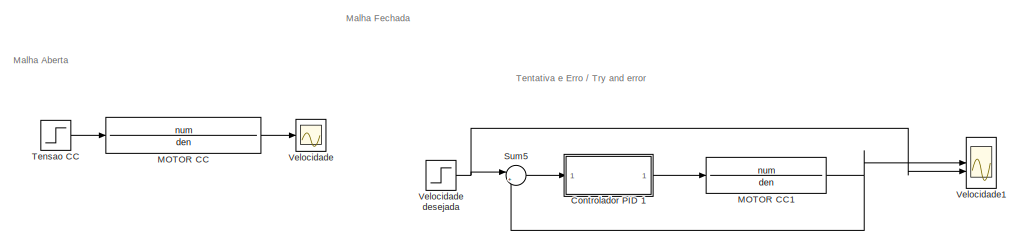
[diagram: root canvas - part 1/2, top left region]
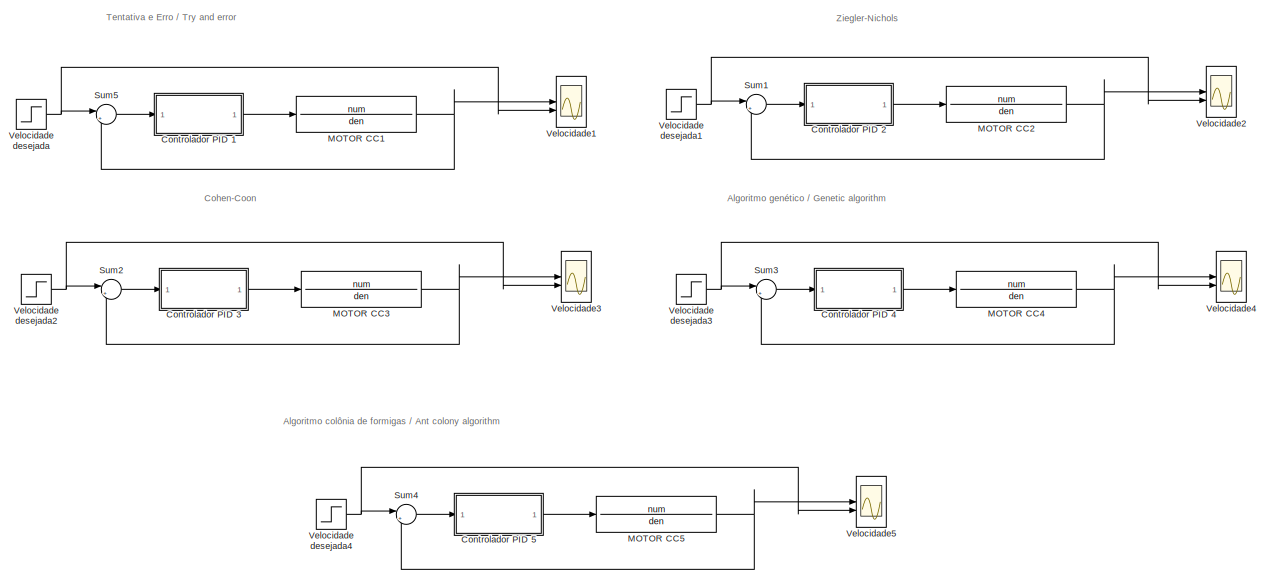
[diagram: root canvas - part 2/2, most of the canvas]
MODEL slx_eb0a801aba2a
KIND model
CONFIG AbsTol = auto
CONFIG EnableMultiTasking = off
CONFIG FixedStep = auto
CONFIG MaxStep = auto
CONFIG MinStep = auto
CONFIG RelTol = 1e-3
CONFIG SampleTimeConstraint = Unconstrained
CONFIG SolverName = VariableStepAuto
CONFIG StartTime = 0.0
CONFIG StopTime = 35
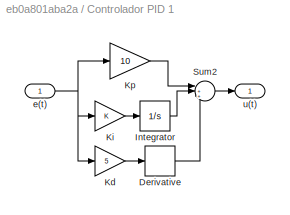
BLOCK [SubSystem] Controlador PID 1
BLOCK [Derivative] Controlador PID 1/Derivative
BLOCK [Integrator] Controlador PID 1/Integrator
BLOCK [Gain] Controlador PID 1/Kd
  Gain = 5
BLOCK [Gain] Controlador PID 1/Ki
BLOCK [Gain] Controlador PID 1/Kp
  Gain = 10
BLOCK [Sum] Controlador PID 1/Sum2
  Inputs = |+++
BLOCK [Inport] Controlador PID 1/e(t)
BLOCK [Outport] Controlador PID 1/u(t)
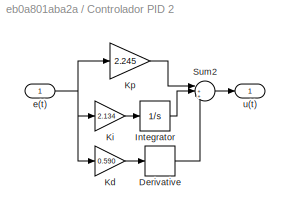
BLOCK [SubSystem] Controlador PID 2
BLOCK [Derivative] Controlador PID 2/Derivative
BLOCK [Integrator] Controlador PID 2/Integrator
BLOCK [Gain] Controlador PID 2/Kd
  Gain = 0.590
BLOCK [Gain] Controlador PID 2/Ki
  Gain = 2.134
BLOCK [Gain] Controlador PID 2/Kp
  Gain = 2.245
BLOCK [Sum] Controlador PID 2/Sum2
  Inputs = |+++
BLOCK [Inport] Controlador PID 2/e(t)
BLOCK [Outport] Controlador PID 2/u(t)
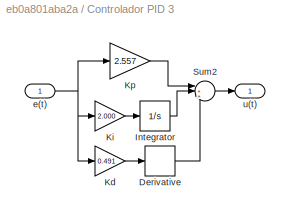
BLOCK [SubSystem] Controlador PID 3
BLOCK [Derivative] Controlador PID 3/Derivative
BLOCK [Integrator] Controlador PID 3/Integrator
BLOCK [Gain] Controlador PID 3/Kd
  Gain = 0.491
BLOCK [Gain] Controlador PID 3/Ki
  Gain = 2.000
BLOCK [Gain] Controlador PID 3/Kp
  Gain = 2.557
BLOCK [Sum] Controlador PID 3/Sum2
  Inputs = |+++
BLOCK [Inport] Controlador PID 3/e(t)
BLOCK [Outport] Controlador PID 3/u(t)
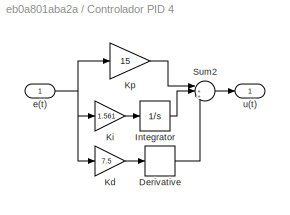
BLOCK [SubSystem] Controlador PID 4
BLOCK [Derivative] Controlador PID 4/Derivative
BLOCK [Integrator] Controlador PID 4/Integrator
BLOCK [Gain] Controlador PID 4/Kd
  Gain = 7.5
BLOCK [Gain] Controlador PID 4/Ki
  Gain = 1.561
BLOCK [Gain] Controlador PID 4/Kp
  Gain = 15
BLOCK [Sum] Controlador PID 4/Sum2
  Inputs = |+++
BLOCK [Inport] Controlador PID 4/e(t)
BLOCK [Outport] Controlador PID 4/u(t)
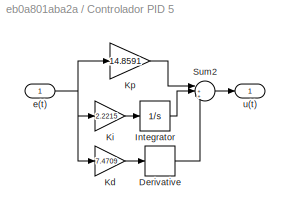
BLOCK [SubSystem] Controlador PID 5
BLOCK [Derivative] Controlador PID 5/Derivative
BLOCK [Integrator] Controlador PID 5/Integrator
BLOCK [Gain] Controlador PID 5/Kd
  Gain = 7.4709
BLOCK [Gain] Controlador PID 5/Ki
  Gain = 2.2215
BLOCK [Gain] Controlador PID 5/Kp
  Gain = 14.8591
BLOCK [Sum] Controlador PID 5/Sum2
  Inputs = |+++
BLOCK [Inport] Controlador PID 5/e(t)
BLOCK [Outport] Controlador PID 5/u(t)
BLOCK [TransferFcn] MOTOR CC
  Denominator = den
  Numerator = num
BLOCK [TransferFcn] MOTOR CC1
  Denominator = den
  Numerator = num
BLOCK [TransferFcn] MOTOR CC2
  Denominator = den
  Numerator = num
BLOCK [TransferFcn] MOTOR CC3
  Denominator = den
  Numerator = num
BLOCK [TransferFcn] MOTOR CC4
  Denominator = den
  Numerator = num
BLOCK [TransferFcn] MOTOR CC5
  Denominator = den
  Numerator = num
BLOCK [Sum] Sum1
  Inputs = |+-
BLOCK [Sum] Sum2
  Inputs = |+-
BLOCK [Sum] Sum3
  Inputs = |+-
BLOCK [Sum] Sum4
  Inputs = |+-
BLOCK [Sum] Sum5
  Inputs = |+-
BLOCK [Step] Tensao CC
  After = 5
  SampleTime = 0
BLOCK [Scope] Velocidade
  Floating = off
  NumInputPorts = 1
  ScopeSpecificationString = Simulink.scopes.TimeScopeBlockCfg('CurrentConfiguration', extmgr.ConfigurationSet(extmgr.Configuration('Core','General UI',true),extmgr.Configuration('Core','Source UI',true),extmgr.Configuration('Sources','WiredSimulink',true),extmgr.Configuration('Visuals','Time Domain',true,'SerializedDisplays',{struct('MinYLimReal','-4.94182','MaxYLimReal','44.47642','YLabelReal','','MinYLimMag','0.00000','Max...<+1450ch>
BLOCK [Step] Velocidade desejada
  SampleTime = 0
BLOCK [Step] Velocidade desejada1
  SampleTime = 0
BLOCK [Step] Velocidade desejada2
  SampleTime = 0
BLOCK [Step] Velocidade desejada3
  SampleTime = 0
BLOCK [Step] Velocidade desejada4
  SampleTime = 0
BLOCK [Scope] Velocidade1
  Floating = off
  NumInputPorts = 2
  ScopeSpecificationString = Simulink.scopes.TimeScopeBlockCfg('CurrentConfiguration', extmgr.ConfigurationSet(extmgr.Configuration('Core','General UI',true),extmgr.Configuration('Core','Source UI',true),extmgr.Configuration('Sources','WiredSimulink',true,'DataLoggingVariableName','ScopeData5'),extmgr.Configuration('Visuals','Time Domain',true,'SerializedDisplays',{struct('MinYLimReal','-0.14264','MaxYLimReal','1.28378','YLab...<+1884ch>
BLOCK [Scope] Velocidade2
  Floating = off
  NumInputPorts = 2
  ScopeSpecificationString = Simulink.scopes.TimeScopeBlockCfg('CurrentConfiguration', extmgr.ConfigurationSet(extmgr.Configuration('Core','General UI',true),extmgr.Configuration('Core','Source UI',true),extmgr.Configuration('Sources','WiredSimulink',true,'DataLoggingVariableName','ScopeData1'),extmgr.Configuration('Visuals','Time Domain',true,'SerializedDisplays',{struct('MinYLimReal','-0.2779','MaxYLimReal','1.4851','YLabel...<+1878ch>
BLOCK [Scope] Velocidade3
  Floating = off
  NumInputPorts = 2
  ScopeSpecificationString = Simulink.scopes.TimeScopeBlockCfg('CurrentConfiguration', extmgr.ConfigurationSet(extmgr.Configuration('Core','General UI',true),extmgr.Configuration('Core','Source UI',true),extmgr.Configuration('Sources','WiredSimulink',true,'DataLoggingVariableName','ScopeData2'),extmgr.Configuration('Visuals','Time Domain',true,'SerializedDisplays',{struct('MinYLimReal','-0.14264','MaxYLimReal','1.28378','YLab...<+1891ch>
BLOCK [Scope] Velocidade4
  Floating = off
  NumInputPorts = 2
  ScopeSpecificationString = Simulink.scopes.TimeScopeBlockCfg('CurrentConfiguration', extmgr.ConfigurationSet(extmgr.Configuration('Core','General UI',true),extmgr.Configuration('Core','Source UI',true),extmgr.Configuration('Sources','WiredSimulink',true,'DataLoggingVariableName','ScopeData3'),extmgr.Configuration('Visuals','Time Domain',true,'SerializedDisplays',{struct('MinYLimReal','-0.14264','MaxYLimReal','1.28378','YLab...<+1893ch>
BLOCK [Scope] Velocidade5
  Floating = off
  NumInputPorts = 2
  ScopeSpecificationString = Simulink.scopes.TimeScopeBlockCfg('CurrentConfiguration', extmgr.ConfigurationSet(extmgr.Configuration('Core','General UI',true),extmgr.Configuration('Core','Source UI',true),extmgr.Configuration('Sources','WiredSimulink',true,'DataLoggingVariableName','ScopeData4'),extmgr.Configuration('Visuals','Time Domain',true,'SerializedDisplays',{struct('MinYLimReal','-0.14264','MaxYLimReal','1.28378','YLab...<+1892ch>
ANNOTATION (root): Malha Aberta
ANNOTATION (root): Malha Fechada
ANNOTATION (root): Tentativa e Erro / Try and error
ANNOTATION (root): Algoritmo colônia de formigas / Ant colony algorithm
ANNOTATION (root): Algoritmo genético / Genetic algorithm
ANNOTATION (root): Cohen-Coon
ANNOTATION (root): Ziegler-Nichols
LINE Controlador PID 1/Derivative:1 -> Controlador PID 1/Sum2:3
LINE Controlador PID 1/Integrator:1 -> Controlador PID 1/Sum2:2
LINE Controlador PID 1/Kd:1 -> Controlador PID 1/Derivative:1
LINE Controlador PID 1/Ki:1 -> Controlador PID 1/Integrator:1
LINE Controlador PID 1/Kp:1 -> Controlador PID 1/Sum2:1
LINE Controlador PID 1/Sum2:1 -> Controlador PID 1/u(t):1
NET Controlador PID 1/e(t):1 -> Controlador PID 1/Kd:1, Controlador PID 1/Ki:1, Controlador PID 1/Kp:1
LINE Controlador PID 1:1 -> MOTOR CC1:1
LINE Controlador PID 2/Derivative:1 -> Controlador PID 2/Sum2:3
LINE Controlador PID 2/Integrator:1 -> Controlador PID 2/Sum2:2
LINE Controlador PID 2/Kd:1 -> Controlador PID 2/Derivative:1
LINE Controlador PID 2/Ki:1 -> Controlador PID 2/Integrator:1
LINE Controlador PID 2/Kp:1 -> Controlador PID 2/Sum2:1
LINE Controlador PID 2/Sum2:1 -> Controlador PID 2/u(t):1
NET Controlador PID 2/e(t):1 -> Controlador PID 2/Kd:1, Controlador PID 2/Ki:1, Controlador PID 2/Kp:1
LINE Controlador PID 2:1 -> MOTOR CC2:1
LINE Controlador PID 3/Derivative:1 -> Controlador PID 3/Sum2:3
LINE Controlador PID 3/Integrator:1 -> Controlador PID 3/Sum2:2
LINE Controlador PID 3/Kd:1 -> Controlador PID 3/Derivative:1
LINE Controlador PID 3/Ki:1 -> Controlador PID 3/Integrator:1
LINE Controlador PID 3/Kp:1 -> Controlador PID 3/Sum2:1
LINE Controlador PID 3/Sum2:1 -> Controlador PID 3/u(t):1
NET Controlador PID 3/e(t):1 -> Controlador PID 3/Kd:1, Controlador PID 3/Ki:1, Controlador PID 3/Kp:1
LINE Controlador PID 3:1 -> MOTOR CC3:1
LINE Controlador PID 4/Derivative:1 -> Controlador PID 4/Sum2:3
LINE Controlador PID 4/Integrator:1 -> Controlador PID 4/Sum2:2
LINE Controlador PID 4/Kd:1 -> Controlador PID 4/Derivative:1
LINE Controlador PID 4/Ki:1 -> Controlador PID 4/Integrator:1
LINE Controlador PID 4/Kp:1 -> Controlador PID 4/Sum2:1
LINE Controlador PID 4/Sum2:1 -> Controlador PID 4/u(t):1
NET Controlador PID 4/e(t):1 -> Controlador PID 4/Kd:1, Controlador PID 4/Ki:1, Controlador PID 4/Kp:1
LINE Controlador PID 4:1 -> MOTOR CC4:1
LINE Controlador PID 5/Derivative:1 -> Controlador PID 5/Sum2:3
LINE Controlador PID 5/Integrator:1 -> Controlador PID 5/Sum2:2
LINE Controlador PID 5/Kd:1 -> Controlador PID 5/Derivative:1
LINE Controlador PID 5/Ki:1 -> Controlador PID 5/Integrator:1
LINE Controlador PID 5/Kp:1 -> Controlador PID 5/Sum2:1
LINE Controlador PID 5/Sum2:1 -> Controlador PID 5/u(t):1
NET Controlador PID 5/e(t):1 -> Controlador PID 5/Kd:1, Controlador PID 5/Ki:1, Controlador PID 5/Kp:1
LINE Controlador PID 5:1 -> MOTOR CC5:1
NET MOTOR CC1:1 -> Sum5:2, Velocidade1:1
NET MOTOR CC2:1 -> Sum1:2, Velocidade2:1
NET MOTOR CC3:1 -> Sum2:2, Velocidade3:1
NET MOTOR CC4:1 -> Sum3:2, Velocidade4:1
NET MOTOR CC5:1 -> Sum4:2, Velocidade5:1
LINE MOTOR CC:1 -> Velocidade:1
LINE Sum1:1 -> Controlador PID 2:1
LINE Sum2:1 -> Controlador PID 3:1
LINE Sum3:1 -> Controlador PID 4:1
LINE Sum4:1 -> Controlador PID 5:1
LINE Sum5:1 -> Controlador PID 1:1
LINE Tensao CC:1 -> MOTOR CC:1
NET Velocidade desejada1:1 -> Sum1:1, Velocidade2:2
NET Velocidade desejada2:1 -> Sum2:1, Velocidade3:2
NET Velocidade desejada3:1 -> Sum3:1, Velocidade4:2
NET Velocidade desejada4:1 -> Sum4:1, Velocidade5:2
NET Velocidade desejada:1 -> Sum5:1, Velocidade1:2
note: NET lines group one-source signal fan-out (src -> all destinations, sorted); 1:1 wires keep LINE
